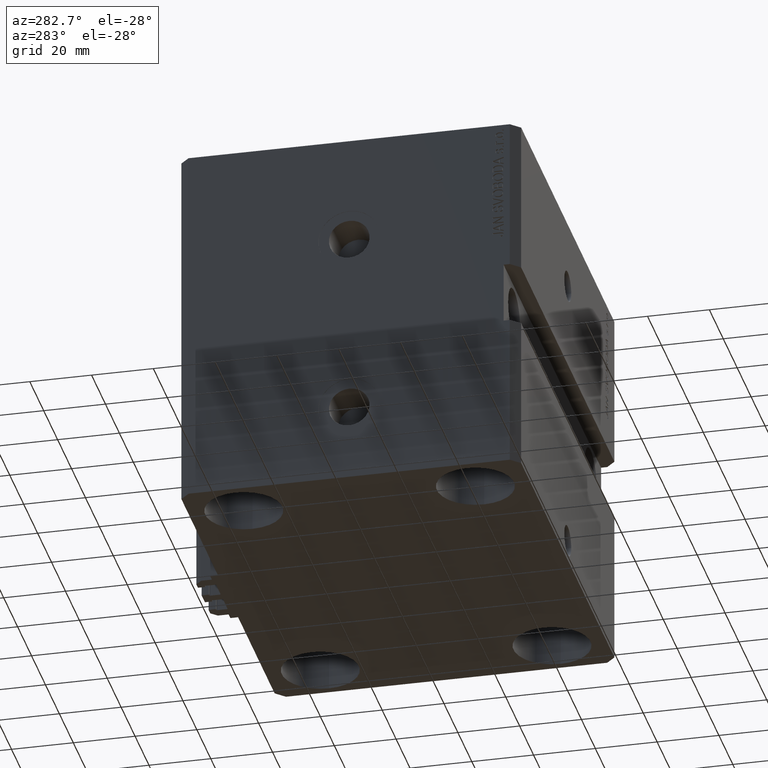
[diagram: clean part render]
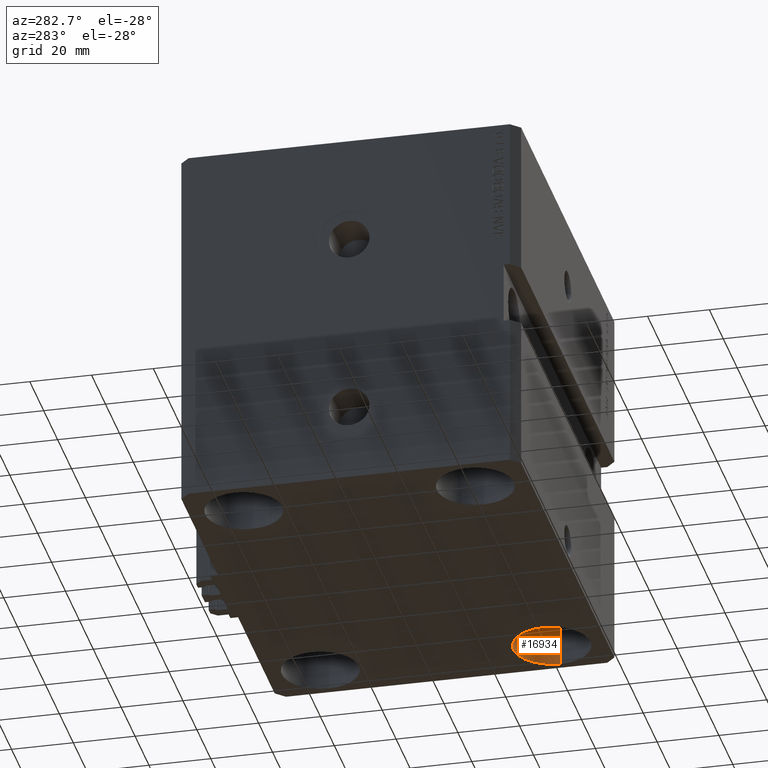
[diagram: same view with one face highlighted and labeled with its STEP entity id]
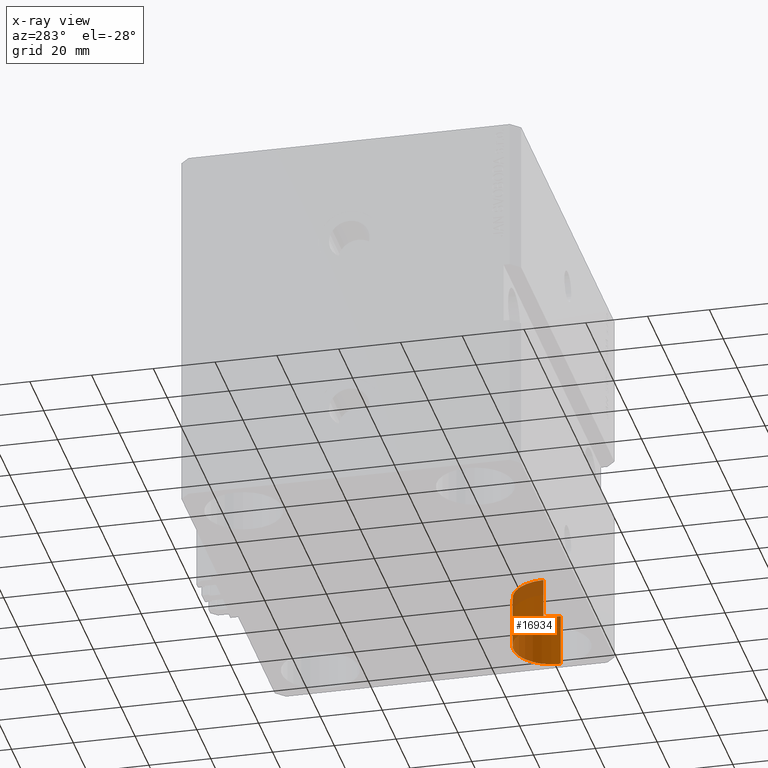
[diagram: x-ray of the same camera — body ghosted, the highlighted face saturated]
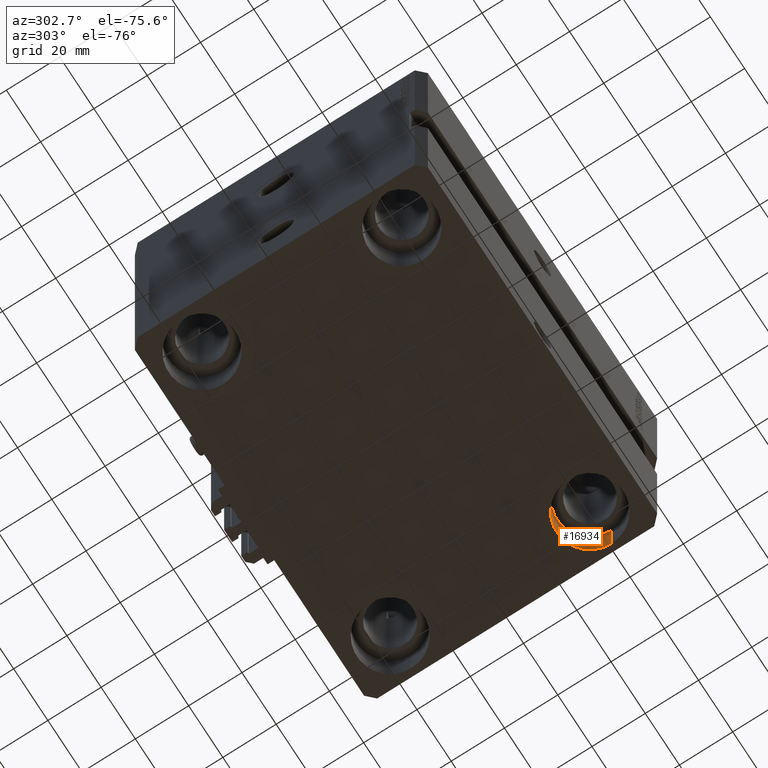
[diagram: same view with one face highlighted and labeled with its STEP entity id]
A machine part, auxiliary view. The second image highlights one B-rep face of the part: STEP entity #16934.
The next image is the same camera in x-ray: the body ghosted, the highlighted face saturated — about 21% of this face is hidden behind the body in this view.
A second angle (auxiliary view) of the same face is appended — the face is thin or edge-on in the first view.
In plain terms, the highlighted cylindrical surface (partial cylindrical patch) has radius 12.5 mm, axis along (-0, -0, -1).
Its self-contained STEP definition (entity closure, byte-faithful):
#834 = DIRECTION ( 'NONE',  ( -0.000000000000000000, -0.000000000000000000, 1.000000000000000000 ) ) ;
#1180 = DIRECTION ( 'NONE',  ( -1.000000000000000000, 0.000000000000000000, 0.000000000000000000 ) ) ;
#1318 = LINE ( 'NONE', #27728, #12369 ) ;
#2174 = EDGE_CURVE ( 'NONE', #44367, #27927, #34802, .T. ) ;
#3740 = CIRCLE ( 'NONE', #39249, 12.49999999999999645 ) ;
#4261 = ORIENTED_EDGE ( 'NONE', *, *, #27193, .T. ) ;
#5504 = ORIENTED_EDGE ( 'NONE', *, *, #2174, .F. ) ;
#6127 = CARTESIAN_POINT ( 'NONE',  ( 55.00000000000000711, -37.50000000000000711, -120.0000000000000000 ) ) ;
#7964 = AXIS2_PLACEMENT_3D ( 'NONE', #6127, #24410, #13528 ) ;
#8092 = DIRECTION ( 'NONE',  ( -0.000000000000000000, -0.000000000000000000, -1.000000000000000000 ) ) ;
#8478 = CARTESIAN_POINT ( 'NONE',  ( 55.00000000000000711, -37.50000000000000711, -103.0000000000000000 ) ) ;
#11412 = CARTESIAN_POINT ( 'NONE',  ( 67.50000000000000000, -37.50000000000000711, -120.0000000000000000 ) ) ;
#11580 = LINE ( 'NONE', #41210, #20607 ) ;
#11647 = CARTESIAN_POINT ( 'NONE',  ( 42.50000000000000711, -37.50000000000000711, -120.0000000000000000 ) ) ;
#12369 = VECTOR ( 'NONE', #39092, 1000.000000000000000 ) ;
#13528 = DIRECTION ( 'NONE',  ( 1.000000000000000000, 0.000000000000000000, 0.000000000000000000 ) ) ;
#13885 = VERTEX_POINT ( 'NONE', #37651 ) ;
#16934 = ADVANCED_FACE ( 'NONE', ( #34767 ), #31069, .F. ) ;
#20607 = VECTOR ( 'NONE', #30838, 1000.000000000000000 ) ;
#21467 = VERTEX_POINT ( 'NONE', #41684 ) ;
#24410 = DIRECTION ( 'NONE',  ( -0.000000000000000000, -0.000000000000000000, 1.000000000000000000 ) ) ;
#27193 = EDGE_CURVE ( 'NONE', #21467, #27927, #1318, .T. ) ;
#27684 = EDGE_CURVE ( 'NONE', #13885, #21467, #3740, .T. ) ;
#27728 = CARTESIAN_POINT ( 'NONE',  ( 42.50000000000000711, -37.50000000000000711, -103.0000000000000000 ) ) ;
#27927 = VERTEX_POINT ( 'NONE', #11647 ) ;
#27995 = ORIENTED_EDGE ( 'NONE', *, *, #27684, .T. ) ;
#30838 = DIRECTION ( 'NONE',  ( -0.000000000000000000, -0.000000000000000000, -1.000000000000000000 ) ) ;
#31069 = CYLINDRICAL_SURFACE ( 'NONE', #40599, 12.49999999999999645 ) ;
#34767 = FACE_OUTER_BOUND ( 'NONE', #39358, .T. ) ;
#34802 = CIRCLE ( 'NONE', #7964, 12.49999999999999645 ) ;
#36557 = EDGE_CURVE ( 'NONE', #13885, #44367, #11580, .T. ) ;
#37651 = CARTESIAN_POINT ( 'NONE',  ( 67.50000000000000000, -37.50000000000000711, -103.0000000000000000 ) ) ;
#38379 = DIRECTION ( 'NONE',  ( 1.000000000000000000, 0.000000000000000000, 0.000000000000000000 ) ) ;
#39092 = DIRECTION ( 'NONE',  ( -0.000000000000000000, -0.000000000000000000, -1.000000000000000000 ) ) ;
#39249 = AXIS2_PLACEMENT_3D ( 'NONE', #8478, #834, #38379 ) ;
#39358 = EDGE_LOOP ( 'NONE', ( #45784, #27995, #4261, #5504 ) ) ;
#40599 = AXIS2_PLACEMENT_3D ( 'NONE', #45851, #8092, #1180 ) ;
#41210 = CARTESIAN_POINT ( 'NONE',  ( 67.50000000000000000, -37.50000000000000711, -103.0000000000000000 ) ) ;
#41684 = CARTESIAN_POINT ( 'NONE',  ( 42.50000000000000711, -37.50000000000000711, -103.0000000000000000 ) ) ;
#44367 = VERTEX_POINT ( 'NONE', #11412 ) ;
#45784 = ORIENTED_EDGE ( 'NONE', *, *, #36557, .F. ) ;
#45851 = CARTESIAN_POINT ( 'NONE',  ( 55.00000000000000711, -37.50000000000000711, -103.0000000000000000 ) ) ;